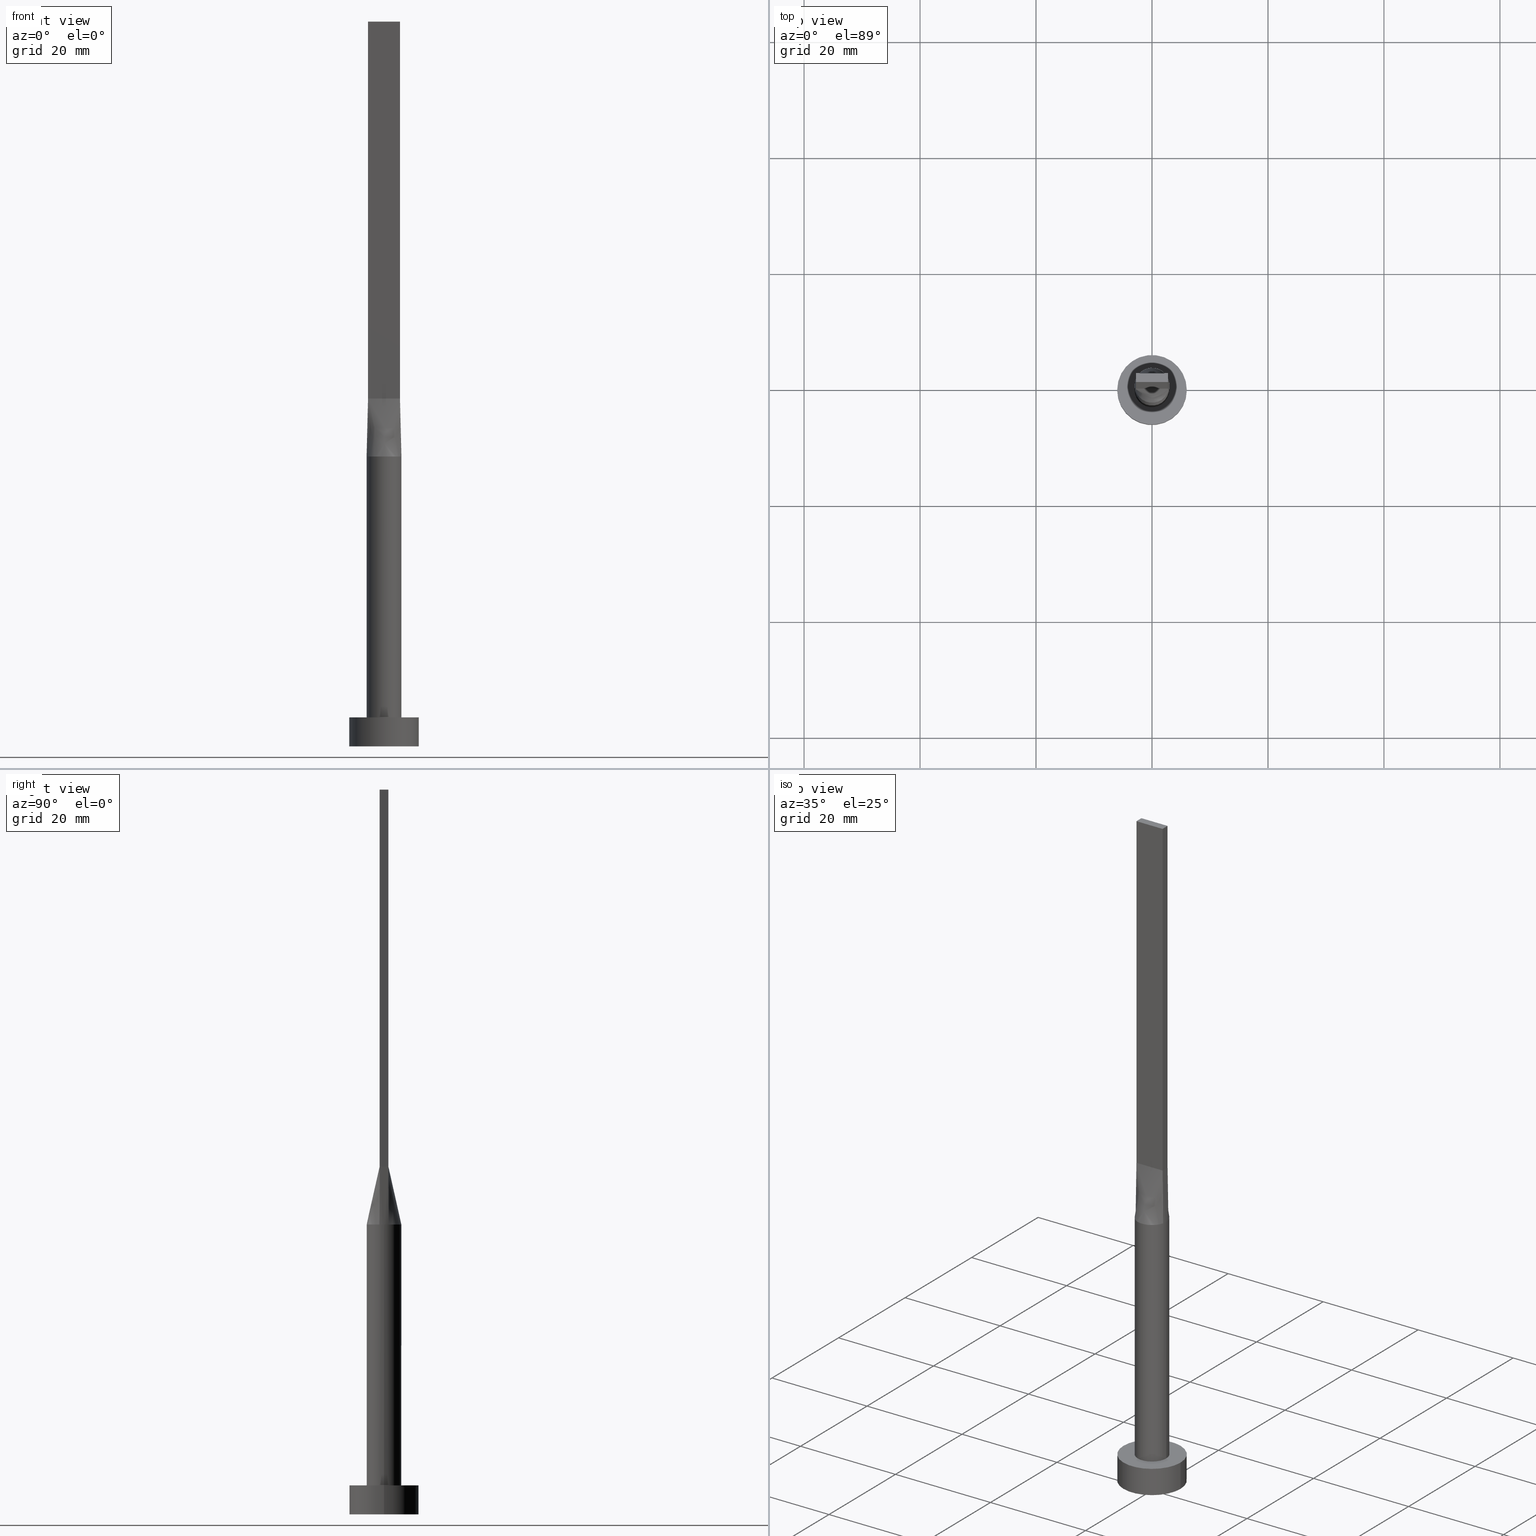
[diagram: canonical four-view strip — front | top / right | iso, engineering-drawing reading convention]
A machine part, canonical four-view strip (front | top / right | iso — engineering-drawing reading convention). The complete STEP part file that produces these views, byte-faithful:
ISO-10303-21;
HEADER;
FILE_DESCRIPTION (( 'STEP AP203' ),
    '1' );
FILE_NAME ('8f36.STEP',
    '2023-02-13T10:28:38',
    ( '' ),
    ( '' ),
    'SwSTEP 2.0',
    'SolidWorks 2019',
    '' );
FILE_SCHEMA (( 'CONFIG_CONTROL_DESIGN' ));
ENDSEC;

DATA;
#1 = CARTESIAN_POINT ( 'NONE',  ( 0.000000000000000000, 0.000000000000000000, 49.99999999999999289 ) ) ;
#2 = ORIENTED_EDGE ( 'NONE', *, *, #554, .T. ) ;
#3 = CARTESIAN_POINT ( 'NONE',  ( -0.7628506052746797383, 2.924692134573155133, 50.00000000000001421 ) ) ;
#4 = CARTESIAN_POINT ( 'NONE',  ( -1.604166666666666075, 0.7500000000000002220, 60.00000000000000000 ) ) ;
#5 = CARTESIAN_POINT ( 'NONE',  ( -2.894291463713197121, -0.7893522173763257710, 49.99999999999999289 ) ) ;
#6 = ORIENTED_EDGE ( 'NONE', *, *, #222, .F. ) ;
#7 = EDGE_LOOP ( 'NONE', ( #2, #357, #11, #54 ) ) ;
#8 = APPLICATION_CONTEXT ( 'configuration controlled 3d designs of mechanical parts and assemblies' ) ;
#9 = EDGE_CURVE ( 'NONE', #261, #267, #519, .T. ) ;
#10 = ADVANCED_FACE ( 'NONE', ( #527, #247 ), #285, .T. ) ;
#11 = ORIENTED_EDGE ( 'NONE', *, *, #30, .F. ) ;
#12 = CARTESIAN_POINT ( 'NONE',  ( 2.894514141151844910, -0.7894138151126537384, 49.99999999999999289 ) ) ;
#13 = DIRECTION ( 'NONE',  ( 1.000000000000000000, 0.000000000000000000, -0.000000000000000000 ) ) ;
#14 = CARTESIAN_POINT ( 'NONE',  ( 0.4583333333333297066, -0.7499999999999995559, 60.00000000000000000 ) ) ;
#15 = CARTESIAN_POINT ( 'NONE',  ( -3.000000000000000444, 0.000000000000000000, 5.000000000000000000 ) ) ;
#16 = FACE_OUTER_BOUND ( 'NONE', #79, .T. ) ;
#17 = CIRCLE ( 'NONE', #45, 3.000000000000000444 ) ;
#18 = CARTESIAN_POINT ( 'NONE',  ( -2.733316749964668002, 1.269511353635830453, 50.00000000000000711 ) ) ;
#19 = DIRECTION ( 'NONE',  ( 1.000000000000000000, -5.913830031739115543E-17, 0.000000000000000000 ) ) ;
#20 = CARTESIAN_POINT ( 'NONE',  ( -0.4583333333333369786, -0.7499999999999995559, 60.00000000000000000 ) ) ;
#21 = PERSON ( 'NEUR�EN�', 'NEUR�EN�', 'NEUR�EN�', ('NEUR�EN�'), ('NEUR�EN�'), ('NEUR�EN�') ) ;
#22 = CC_DESIGN_APPROVAL ( #290, ( #526 ) ) ;
#23 = CC_DESIGN_PERSON_AND_ORGANIZATION_ASSIGNMENT ( #349, #218, ( #526 ) ) ;
#24 = CARTESIAN_POINT ( 'NONE',  ( -2.750000000000000000, -0.7499999999999994449, 125.0000000000000000 ) ) ;
#25 = DIRECTION ( 'NONE',  ( 1.000000000000000000, 0.000000000000000000, 0.000000000000000000 ) ) ;
#26 = VECTOR ( 'NONE', #323, 1000.000000000000000 ) ;
#27 = CYLINDRICAL_SURFACE ( 'NONE', #103, 3.000000000000000444 ) ;
#28 = CYLINDRICAL_SURFACE ( 'NONE', #183, 6.000000000000000888 ) ;
#29 = EDGE_CURVE ( 'NONE', #150, #165, #544, .T. ) ;
#30 = EDGE_CURVE ( 'NONE', #245, #469, #148, .T. ) ;
#31 = FACE_OUTER_BOUND ( 'NONE', #140, .T. ) ;
#32 = APPROVAL_PERSON_ORGANIZATION ( #135, #290, #490 ) ;
#33 = PLANE ( 'NONE',  #173 ) ;
#34 = CARTESIAN_POINT ( 'NONE',  ( 2.750000000000000000, 0.5000000000000011102, 59.99999999999999289 ) ) ;
#35 = AXIS2_PLACEMENT_3D ( 'NONE', #80, #481, #565 ) ;
#36 = COORDINATED_UNIVERSAL_TIME_OFFSET ( 1, 0, .AHEAD. ) ;
#37 = EDGE_CURVE ( 'NONE', #360, #245, #156, .T. ) ;
#38 = LINE ( 'NONE', #219, #320 ) ;
#39 = LINE ( 'NONE', #42, #412 ) ;
#40 = CALENDAR_DATE ( 2023, 13, 2 ) ;
#41 = DIRECTION ( 'NONE',  ( 0.000000000000000000, 0.000000000000000000, 1.000000000000000000 ) ) ;
#42 = CARTESIAN_POINT ( 'NONE',  ( -2.750000000000000000, -0.7499999999999994449, 125.0000000000000000 ) ) ;
#43 = CARTESIAN_POINT ( 'NONE',  ( -2.894291463713197121, -0.7893522173763259930, 49.99999999999999289 ) ) ;
#44 = CARTESIAN_POINT ( 'NONE',  ( -1.447928580458858416, 2.653161878569119558, 50.00000000000000711 ) ) ;
#45 = AXIS2_PLACEMENT_3D ( 'NONE', #432, #160, #556 ) ;
#46 = CARTESIAN_POINT ( 'NONE',  ( 0.2291666666666677121, 0.7500000000000003331, 60.00000000000000000 ) ) ;
#47 = ORIENTED_EDGE ( 'NONE', *, *, #255, .F. ) ;
#48 = ADVANCED_FACE ( 'NONE', ( #16 ), #462, .F. ) ;
#49 = ORIENTED_EDGE ( 'NONE', *, *, #280, .F. ) ;
#50 = CARTESIAN_POINT ( 'NONE',  ( 1.833333333333333925, 0.7500000000000002220, 60.00000000000000000 ) ) ;
#51 = VERTEX_POINT ( 'NONE', #470 ) ;
#52 = ORGANIZATION ( 'NEUR�EN�', 'NEUR�EN�', '' ) ;
#53 = DIRECTION ( 'NONE',  ( -1.000000000000000000, 0.000000000000000000, 0.000000000000000000 ) ) ;
#54 = ORIENTED_EDGE ( 'NONE', *, *, #158, .T. ) ;
#55 = ORIENTED_EDGE ( 'NONE', *, *, #508, .F. ) ;
#56 = PRODUCT_DEFINITION_SHAPE ( 'NONE', 'NONE',  #509 ) ;
#57 = CARTESIAN_POINT ( 'NONE',  ( -2.442412046818594806, -1.765588549521968975, 49.99999999999999289 ) ) ;
#58 = EDGE_CURVE ( 'NONE', #469, #442, #152, .T. ) ;
#59 = EDGE_LOOP ( 'NONE', ( #49, #55 ) ) ;
#60 = ORIENTED_EDGE ( 'NONE', *, *, #29, .T. ) ;
#61 = DIRECTION ( 'NONE',  ( 0.000000000000000000, 0.000000000000000000, 1.000000000000000000 ) ) ;
#62 = VERTEX_POINT ( 'NONE', #12 ) ;
#63 = CARTESIAN_POINT ( 'NONE',  ( -2.291666666666667851, -0.7499999999999995559, 60.00000000000000000 ) ) ;
#65 = VECTOR ( 'NONE', #321, 1000.000000000000000 ) ;
#64 = DIRECTION ( 'NONE',  ( 1.000000000000000000, -5.913830031739115543E-17, 0.000000000000000000 ) ) ;
#66 = CARTESIAN_POINT ( 'NONE',  ( 2.750000000000000000, 0.7500000000000002220, 60.00000000000000000 ) ) ;
#67 = AXIS2_PLACEMENT_3D ( 'NONE', #1, #139, #98 ) ;
#68 = CARTESIAN_POINT ( 'NONE',  ( -2.830829925251659329, 1.022044525068634302, 50.00000000000000711 ) ) ;
#69 = ORIENTED_EDGE ( 'NONE', *, *, #37, .T. ) ;
#70 = ORIENTED_EDGE ( 'NONE', *, *, #201, .F. ) ;
#71 = PERSON_AND_ORGANIZATION ( #21, #52 ) ;
#72 = DIRECTION ( 'NONE',  ( 0.000000000000000000, -1.000000000000000000, 0.000000000000000000 ) ) ;
#73 = APPLICATION_CONTEXT ( 'configuration controlled 3d designs of mechanical parts and assemblies' ) ;
#74 = ORIENTED_EDGE ( 'NONE', *, *, #9, .F. ) ;
#75 = EDGE_CURVE ( 'NONE', #461, #469, #368, .T. ) ;
#76 = VECTOR ( 'NONE', #260, 1000.000000000000000 ) ;
#77 = CARTESIAN_POINT ( 'NONE',  ( 0.000000000000000000, 0.000000000000000000, 5.000000000000000000 ) ) ;
#78 = EDGE_CURVE ( 'NONE', #502, #189, #339, .T. ) ;
#79 = EDGE_LOOP ( 'NONE', ( #69, #234, #411, #205 ) ) ;
#80 = CARTESIAN_POINT ( 'NONE',  ( 0.000000000000000000, 0.000000000000000000, 5.000000000000000000 ) ) ;
#81 = CARTESIAN_POINT ( 'NONE',  ( 6.000000000000000888, 7.347880794884120722E-16, 0.000000000000000000 ) ) ;
#82 = APPROVAL ( #163, 'NEUR�EN�' ) ;
#83 = CALENDAR_DATE ( 2023, 13, 2 ) ;
#84 = DIRECTION ( 'NONE',  ( 0.000000000000000000, 0.000000000000000000, 1.000000000000000000 ) ) ;
#85 = CARTESIAN_POINT ( 'NONE',  ( -2.750000000000000000, 0.7500000000000002220, 125.0000000000000000 ) ) ;
#86 = PERSON_AND_ORGANIZATION ( #21, #52 ) ;
#87 = CARTESIAN_POINT ( 'NONE',  ( 0.9166666666666676289, 0.7500000000000003331, 60.00000000000000000 ) ) ;
#88 = CARTESIAN_POINT ( 'NONE',  ( 2.750000000000000000, 0.2500000000000014433, 59.99999999999999289 ) ) ;
#89 = CARTESIAN_POINT ( 'NONE',  ( -2.894291463713196677, 0.7893522173763264371, 49.99999999999999289 ) ) ;
#90 = CARTESIAN_POINT ( 'NONE',  ( 2.442412046818595250, 1.765588549521970529, 49.99999999999999289 ) ) ;
#91 = CARTESIAN_POINT ( 'NONE',  ( 2.750000000000000000, 0.7500000000000002220, 125.0000000000000000 ) ) ;
#92 = VECTOR ( 'NONE', #299, 1000.000000000000000 ) ;
#93 = ADVANCED_FACE ( 'NONE', ( #572 ), #326, .T. ) ;
#94 = CARTESIAN_POINT ( 'NONE',  ( 2.442412046818595250, 1.765588549521970529, 49.99999999999999289 ) ) ;
#95 = CARTESIAN_POINT ( 'NONE',  ( 2.248179627679386172, 2.014142483996539834, 49.99999999999998579 ) ) ;
#96 = ORIENTED_EDGE ( 'NONE', *, *, #508, .T. ) ;
#97 = ORIENTED_EDGE ( 'NONE', *, *, #75, .T. ) ;
#98 = DIRECTION ( 'NONE',  ( 1.000000000000000000, 0.000000000000000000, 0.000000000000000000 ) ) ;
#99 = ORIENTED_EDGE ( 'NONE', *, *, #492, .F. ) ;
#100 = ORIENTED_EDGE ( 'NONE', *, *, #554, .F. ) ;
#101 = EDGE_CURVE ( 'NONE', #165, #245, #39, .T. ) ;
#102 = CARTESIAN_POINT ( 'NONE',  ( 2.442412046818594362, -1.765588549521970751, 50.00000000000000000 ) ) ;
#103 = AXIS2_PLACEMENT_3D ( 'NONE', #338, #254, #517 ) ;
#104 = CARTESIAN_POINT ( 'NONE',  ( -0.9166666666666699603, -0.7499999999999995559, 60.00000000000000000 ) ) ;
#105 = CARTESIAN_POINT ( 'NONE',  ( -2.750000000000000000, -0.7499999999999994449, 60.00000000000000000 ) ) ;
#106 = DIRECTION ( 'NONE',  ( 0.000000000000000000, 0.000000000000000000, 1.000000000000000000 ) ) ;
#107 = CARTESIAN_POINT ( 'NONE',  ( -2.248179627679386616, -2.014142483996539390, 50.00000000000000711 ) ) ;
#108 = CARTESIAN_POINT ( 'NONE',  ( 2.750000000000000000, -0.7499999999999997780, 125.0000000000000000 ) ) ;
#109 = CARTESIAN_POINT ( 'NONE',  ( -2.750000000000000000, 0.7500000000000002220, 125.0000000000000000 ) ) ;
#110 = FACE_OUTER_BOUND ( 'NONE', #276, .T. ) ;
#111 = AXIS2_PLACEMENT_3D ( 'NONE', #441, #41, #221 ) ;
#112 = ORIENTED_EDGE ( 'NONE', *, *, #255, .T. ) ;
#113 = CARTESIAN_POINT ( 'NONE',  ( -2.894506632021299541, 0.7894116946786271516, 49.99999999999999289 ) ) ;
#114 = CARTESIAN_POINT ( 'NONE',  ( 2.750000000000000000, 0.7500000000000002220, 60.00000000000000000 ) ) ;
#115 = EDGE_CURVE ( 'NONE', #150, #360, #486, .T. ) ;
#116 = DIRECTION ( 'NONE',  ( -0.000000000000000000, -0.000000000000000000, -1.000000000000000000 ) ) ;
#117 = EDGE_CURVE ( 'NONE', #457, #373, #244, .T. ) ;
#118 = DIRECTION ( 'NONE',  ( 1.000000000000000000, 0.000000000000000000, 0.000000000000000000 ) ) ;
#119 = CARTESIAN_POINT ( 'NONE',  ( -2.963522232943965662, 0.5355060635301726046, 49.99999999999999289 ) ) ;
#120 = VECTOR ( 'NONE', #116, 1000.000000000000000 ) ;
#121 = DIRECTION ( 'NONE',  ( 0.000000000000000000, 0.000000000000000000, 1.000000000000000000 ) ) ;
#122 = ORIENTED_EDGE ( 'NONE', *, *, #30, .T. ) ;
#123 = DIRECTION ( 'NONE',  ( -1.000000000000000000, 0.000000000000000000, 0.000000000000000000 ) ) ;
#124 = ORIENTED_EDGE ( 'NONE', *, *, #201, .T. ) ;
#125 = COORDINATED_UNIVERSAL_TIME_OFFSET ( 1, 0, .AHEAD. ) ;
#126 = PRODUCT_DEFINITION_FORMATION_WITH_SPECIFIED_SOURCE ( 'LIBOVOLN�', '', #460, .NOT_KNOWN. ) ;
#127 = CARTESIAN_POINT ( 'NONE',  ( 2.822145731856598339, 0.7696761086881640512, 54.99999999999999289 ) ) ;
#128 = CARTESIAN_POINT ( 'NONE',  ( -3.000000000000000444, 0.000000000000000000, 49.99999999999999289 ) ) ;
#129 = CC_DESIGN_PERSON_AND_ORGANIZATION_ASSIGNMENT ( #397, #300, ( #126 ) ) ;
#130 = DIRECTION ( 'NONE',  ( 5.913830031739115543E-17, 1.000000000000000000, -0.000000000000000000 ) ) ;
#131 = VECTOR ( 'NONE', #463, 1000.000000000000000 ) ;
#132 = FACE_OUTER_BOUND ( 'NONE', #197, .T. ) ;
#133 = DATE_TIME_ROLE ( 'classification_date' ) ;
#134 = CARTESIAN_POINT ( 'NONE',  ( 2.520833333333333481, 0.7500000000000002220, 60.00000000000000000 ) ) ;
#135 = PERSON_AND_ORGANIZATION ( #21, #52 ) ;
#136 = EDGE_CURVE ( 'NONE', #62, #367, #17, .T. ) ;
#137 = CARTESIAN_POINT ( 'NONE',  ( -1.751288851749021491, 2.458468820606022565, 49.99999999999997868 ) ) ;
#138 = ORIENTED_EDGE ( 'NONE', *, *, #423, .T. ) ;
#139 = DIRECTION ( 'NONE',  ( 0.000000000000000000, 0.000000000000000000, 1.000000000000000000 ) ) ;
#140 = EDGE_LOOP ( 'NONE', ( #417, #273, #491, #97 ) ) ;
#141 = AXIS2_PLACEMENT_3D ( 'NONE', #418, #13, #369 ) ;
#142 = AXIS2_PLACEMENT_3D ( 'NONE', #501, #130, #187 ) ;
#143 = CARTESIAN_POINT ( 'NONE',  ( 0.000000000000000000, 0.000000000000000000, 5.000000000000000000 ) ) ;
#144 = ORIENTED_EDGE ( 'NONE', *, *, #117, .F. ) ;
#145 = EDGE_CURVE ( 'NONE', #426, #384, #203, .T. ) ;
#146 = CARTESIAN_POINT ( 'NONE',  ( 2.248179627679384840, -2.014142483996542055, 50.00000000000001421 ) ) ;
#147 = EDGE_LOOP ( 'NONE', ( #74, #372, #494, #454 ) ) ;
#148 = LINE ( 'NONE', #105, #564 ) ;
#149 = CARTESIAN_POINT ( 'NONE',  ( -2.520833333333333925, -0.7499999999999994449, 60.00000000000000000 ) ) ;
#150 = VERTEX_POINT ( 'NONE', #211 ) ;
#151 = VECTOR ( 'NONE', #209, 1000.000000000000000 ) ;
#152 = LINE ( 'NONE', #66, #193 ) ;
#153 = DIRECTION ( 'NONE',  ( 1.000000000000000000, 0.000000000000000000, 0.000000000000000000 ) ) ;
#154 = EDGE_LOOP ( 'NONE', ( #311, #60, #124, #344 ) ) ;
#155 = DIRECTION ( 'NONE',  ( -0.000000000000000000, 1.000000000000000000, -0.000000000000000000 ) ) ;
#156 = LINE ( 'NONE', #278, #65 ) ;
#157 = CARTESIAN_POINT ( 'NONE',  ( 2.291666666666665186, -0.7499999999999997780, 60.00000000000000000 ) ) ;
#158 = EDGE_CURVE ( 'NONE', #245, #458, #471, .T. ) ;
#159 = ORIENTED_EDGE ( 'NONE', *, *, #455, .T. ) ;
#160 = DIRECTION ( 'NONE',  ( 0.000000000000000000, 0.000000000000000000, 1.000000000000000000 ) ) ;
#161 = CARTESIAN_POINT ( 'NONE',  ( 2.830829925251657997, -1.022044525068636078, 50.00000000000000711 ) ) ;
#162 = DIRECTION ( 'NONE',  ( 1.000000000000000000, 0.000000000000000000, -0.000000000000000000 ) ) ;
#163 = APPROVAL_STATUS ( 'not_yet_approved' ) ;
#164 = DIRECTION ( 'NONE',  ( -0.000000000000000000, -0.000000000000000000, -1.000000000000000000 ) ) ;
#165 = VERTEX_POINT ( 'NONE', #24 ) ;
#166 = PERSON_AND_ORGANIZATION_ROLE ( 'creator' ) ;
#167 = CARTESIAN_POINT ( 'NONE',  ( 0.000000000000000000, 0.000000000000000000, 5.000000000000000000 ) ) ;
#168 = ADVANCED_BREP_SHAPE_REPRESENTATION ( '8f36', ( #452, #425 ), #284 ) ;
#169 = CARTESIAN_POINT ( 'NONE',  ( 6.000000000000000888, 7.347880794884120722E-16, 5.000000000000000000 ) ) ;
#170 = LOCAL_TIME ( 11, 28, 38.00000000000000000, #36 ) ;
#171 = LINE ( 'NONE', #390, #421 ) ;
#172 = VECTOR ( 'NONE', #288, 1000.000000000000000 ) ;
#173 = AXIS2_PLACEMENT_3D ( 'NONE', #213, #121, #301 ) ;
#174 = CARTESIAN_POINT ( 'NONE',  ( 0.000000000000000000, 0.000000000000000000, 5.000000000000000000 ) ) ;
#175 = CARTESIAN_POINT ( 'NONE',  ( 2.963522232943966106, -0.5355060635301738259, 49.99999999999999289 ) ) ;
#176 = CARTESIAN_POINT ( 'NONE',  ( 6.000000000000000888, 7.347880794884120722E-16, 5.000000000000000000 ) ) ;
#177 = DATE_AND_TIME ( #83, #246 ) ;
#178 = VECTOR ( 'NONE', #282, 1000.000000000000000 ) ;
#179 = DIRECTION ( 'NONE',  ( 0.000000000000000000, 0.000000000000000000, 1.000000000000000000 ) ) ;
#180 = CARTESIAN_POINT ( 'NONE',  ( 2.894291463713196677, -0.7893522173763282135, 49.99999999999999289 ) ) ;
#181 = APPROVAL_STATUS ( 'not_yet_approved' ) ;
#182 = DIRECTION ( 'NONE',  ( -1.000000000000000000, -0.000000000000000000, -0.000000000000000000 ) ) ;
#183 = AXIS2_PLACEMENT_3D ( 'NONE', #174, #385, #332 ) ;
#184 = SECURITY_CLASSIFICATION_LEVEL ( 'unclassified' ) ;
#185 = ADVANCED_FACE ( 'NONE', ( #382 ), #283, .T. ) ;
#186 = DIRECTION ( 'NONE',  ( 0.000000000000000000, 0.000000000000000000, 1.000000000000000000 ) ) ;
#187 = DIRECTION ( 'NONE',  ( -1.000000000000000000, 5.913830031739115543E-17, 0.000000000000000000 ) ) ;
#188 = CARTESIAN_POINT ( 'NONE',  ( 2.733316749964668446, 1.269511353635831341, 50.00000000000001421 ) ) ;
#189 = VERTEX_POINT ( 'NONE', #15 ) ;
#190 = LOCAL_TIME ( 11, 28, 38.00000000000000000, #125 ) ;
#191 = CARTESIAN_POINT ( 'NONE',  ( 1.751288851749022379, 2.458468820606022565, 49.99999999999998579 ) ) ;
#192 = CARTESIAN_POINT ( 'NONE',  ( -0.7628506052746797383, 2.924692134573155133, 50.00000000000001421 ) ) ;
#193 = VECTOR ( 'NONE', #155, 1000.000000000000000 ) ;
#194 = VECTOR ( 'NONE', #485, 1000.000000000000000 ) ;
#195 = CARTESIAN_POINT ( 'NONE',  ( -1.604166666666669183, -0.7499999999999995559, 60.00000000000000000 ) ) ;
#196 = CARTESIAN_POINT ( 'NONE',  ( -0.3818979204996094667, -3.000000000000000000, 50.00000000000000000 ) ) ;
#197 = EDGE_LOOP ( 'NONE', ( #363, #416, #100, #6, #229, #538 ) ) ;
#198 = CARTESIAN_POINT ( 'NONE',  ( 0.000000000000000000, 0.000000000000000000, 5.000000000000000000 ) ) ;
#199 = CARTESIAN_POINT ( 'NONE',  ( 2.520833333333332593, -0.7499999999999997780, 60.00000000000000000 ) ) ;
#200 = ORIENTED_EDGE ( 'NONE', *, *, #318, .T. ) ;
#201 = EDGE_CURVE ( 'NONE', #165, #461, #379, .T. ) ;
#202 = AXIS2_PLACEMENT_3D ( 'NONE', #523, #123, #482 ) ;
#203 = LINE ( 'NONE', #374, #120 ) ;
#204 = DIRECTION ( 'NONE',  ( -1.000000000000000000, 0.000000000000000000, 0.000000000000000000 ) ) ;
#205 = ORIENTED_EDGE ( 'NONE', *, *, #115, .T. ) ;
#206 = ADVANCED_FACE ( 'NONE', ( #240 ), #399, .T. ) ;
#207 = CIRCLE ( 'NONE', #308, 3.000000000000000444 ) ;
#208 = APPLICATION_PROTOCOL_DEFINITION ( 'international standard', 'config_control_design', 1994, #8 ) ;
#209 = DIRECTION ( 'NONE',  ( 0.01442753284129399960, -0.003934781683989194319, 0.9998881756422629552 ) ) ;
#210 = ORIENTED_EDGE ( 'NONE', *, *, #222, .T. ) ;
#211 = CARTESIAN_POINT ( 'NONE',  ( -2.750000000000000000, 0.7500000000000002220, 125.0000000000000000 ) ) ;
#212 = DIRECTION ( 'NONE',  ( 1.000000000000000000, 0.000000000000000000, 0.000000000000000000 ) ) ;
#213 = CARTESIAN_POINT ( 'NONE',  ( 0.000000000000000000, 0.000000000000000000, 0.000000000000000000 ) ) ;
#214 = AXIS2_PLACEMENT_3D ( 'NONE', #198, #555, #162 ) ;
#215 = DIRECTION ( 'NONE',  ( -0.01442753284129399960, 0.003934781683989411159, 0.9998881756422629552 ) ) ;
#216 = CARTESIAN_POINT ( 'NONE',  ( 2.750000000000000000, 0.7500000000000002220, 60.00000000000000000 ) ) ;
#217 = CARTESIAN_POINT ( 'NONE',  ( -2.963522232943966106, -0.5355060635301720495, 50.00000000000000000 ) ) ;
#218 = PERSON_AND_ORGANIZATION_ROLE ( 'classification_officer' ) ;
#219 = CARTESIAN_POINT ( 'NONE',  ( 2.750000000000000000, 0.7500000000000002220, 125.0000000000000000 ) ) ;
#220 = APPROVAL_STATUS ( 'not_yet_approved' ) ;
#221 = DIRECTION ( 'NONE',  ( 1.000000000000000000, 0.000000000000000000, 0.000000000000000000 ) ) ;
#222 = EDGE_CURVE ( 'NONE', #502, #458, #450, .T. ) ;
#223 = APPROVAL_ROLE ( '' ) ;
#224 = CARTESIAN_POINT ( 'NONE',  ( -0.3818979204996078569, 3.000000000000000888, 49.99999999999999289 ) ) ;
#225 = CARTESIAN_POINT ( 'NONE',  ( -2.291666666666666075, 0.7500000000000002220, 60.00000000000000000 ) ) ;
#226 = CIRCLE ( 'NONE', #430, 3.000000000000000444 ) ;
#227 = ORIENTED_EDGE ( 'NONE', *, *, #115, .F. ) ;
#228 = CARTESIAN_POINT ( 'NONE',  ( -2.733316749964668002, 1.269511353635830453, 50.00000000000000711 ) ) ;
#229 = ORIENTED_EDGE ( 'NONE', *, *, #78, .T. ) ;
#230 = CARTESIAN_POINT ( 'NONE',  ( 2.894482401701604424, 0.7894050286368272662, 49.99999999999999289 ) ) ;
#231 = DIRECTION ( 'NONE',  ( -0.000000000000000000, -0.000000000000000000, -1.000000000000000000 ) ) ;
#232 = ORIENTED_EDGE ( 'NONE', *, *, #318, .F. ) ;
#233 = ORIENTED_EDGE ( 'NONE', *, *, #563, .T. ) ;
#234 = ORIENTED_EDGE ( 'NONE', *, *, #101, .F. ) ;
#235 = CARTESIAN_POINT ( 'NONE',  ( 2.894291463713196677, -0.7893522173763275473, 49.99999999999999289 ) ) ;
#236 = ORIENTED_EDGE ( 'NONE', *, *, #352, .F. ) ;
#237 = ORIENTED_EDGE ( 'NONE', *, *, #75, .F. ) ;
#238 = CARTESIAN_POINT ( 'NONE',  ( -2.733316749964668446, -1.269511353635829787, 50.00000000000000711 ) ) ;
#239 = CARTESIAN_POINT ( 'NONE',  ( -1.833333333333335480, -0.7499999999999995559, 60.00000000000000000 ) ) ;
#240 = FACE_OUTER_BOUND ( 'NONE', #154, .T. ) ;
#241 = CIRCLE ( 'NONE', #35, 6.000000000000000888 ) ;
#242 = CARTESIAN_POINT ( 'NONE',  ( -2.750000000000000000, -0.7499999999999994449, 60.00000000000000000 ) ) ;
#243 = ADVANCED_FACE ( 'NONE', ( #132 ), #27, .T. ) ;
#244 = B_SPLINE_CURVE_WITH_KNOTS ( 'NONE', 3,
 ( #536, #542, #495, #94, #317, #191, #270, #506, #444, #224, #3, #539, #274, #380, #468, #18, #68, #113 ),
 .UNSPECIFIED., .F., .F.,
 ( 4, 2, 2, 2, 2, 2, 2, 2, 4 ),
 ( 0.000000000000000000, 0.1250000000000000000, 0.2500000000000000000, 0.3750000000000000000, 0.5000000000000000000, 0.6250000000000000000, 0.7500000000000000000, 0.8750000000000000000, 1.000000000000000000 ),
 .UNSPECIFIED. ) ;
#245 = VERTEX_POINT ( 'NONE', #252 ) ;
#246 = LOCAL_TIME ( 11, 28, 38.00000000000000000, #483 ) ;
#247 = FACE_OUTER_BOUND ( 'NONE', #497, .T. ) ;
#248 = DATE_AND_TIME ( #258, #292 ) ;
#249 = APPROVAL ( #181, 'NEUR�EN�' ) ;
#250 = DIRECTION ( 'NONE',  ( 0.000000000000000000, -0.000000000000000000, -1.000000000000000000 ) ) ;
#251 = CIRCLE ( 'NONE', #67, 3.000000000000000444 ) ;
#252 = CARTESIAN_POINT ( 'NONE',  ( -2.750000000000000000, -0.7499999999999994449, 60.00000000000000000 ) ) ;
#253 = ORIENTED_EDGE ( 'NONE', *, *, #117, .T. ) ;
#254 = DIRECTION ( 'NONE',  ( -0.000000000000000000, -0.000000000000000000, -1.000000000000000000 ) ) ;
#255 = EDGE_CURVE ( 'NONE', #373, #360, #329, .T. ) ;
#256 = CARTESIAN_POINT ( 'NONE',  ( 0.000000000000000000, 0.000000000000000000, 0.000000000000000000 ) ) ;
#257 = CARTESIAN_POINT ( 'NONE',  ( 3.000000000000000888, -0.2678361673275873600, 49.99999999999998579 ) ) ;
#258 = CALENDAR_DATE ( 2023, 13, 2 ) ;
#259 = DIRECTION ( 'NONE',  ( 1.000000000000000000, 0.000000000000000000, 0.000000000000000000 ) ) ;
#260 = DIRECTION ( 'NONE',  ( -0.000000000000000000, -0.000000000000000000, -1.000000000000000000 ) ) ;
#261 = VERTEX_POINT ( 'NONE', #176 ) ;
#262 = APPROVAL_DATE_TIME ( #304, #249 ) ;
#263 = CARTESIAN_POINT ( 'NONE',  ( -2.894291463713196677, 0.7893522173763257710, 49.99999999999999289 ) ) ;
#264 = CARTESIAN_POINT ( 'NONE',  ( 2.894291463713196677, 0.7893522173763277694, 49.99999999999999289 ) ) ;
#265 = CARTESIAN_POINT ( 'NONE',  ( 0.7628506052746800714, 2.924692134573154689, 50.00000000000000711 ) ) ;
#266 = ORIENTED_EDGE ( 'NONE', *, *, #515, .T. ) ;
#267 = VERTEX_POINT ( 'NONE', #81 ) ;
#268 = FACE_OUTER_BOUND ( 'NONE', #355, .T. ) ;
#269 = ORIENTED_EDGE ( 'NONE', *, *, #145, .F. ) ;
#270 = CARTESIAN_POINT ( 'NONE',  ( 1.447928580458859305, 2.653161878569118670, 50.00000000000000711 ) ) ;
#271 = CARTESIAN_POINT ( 'NONE',  ( 1.447928580458859305, 2.653161878569118670, 50.00000000000000711 ) ) ;
#272 = UNCERTAINTY_MEASURE_WITH_UNIT (LENGTH_MEASURE( 1.000000000000000082E-05 ), #513, 'distance_accuracy_value', 'NONE');
#273 = ORIENTED_EDGE ( 'NONE', *, *, #423, .F. ) ;
#274 = CARTESIAN_POINT ( 'NONE',  ( -1.751288851749021491, 2.458468820606022565, 49.99999999999997868 ) ) ;
#275 = CARTESIAN_POINT ( 'NONE',  ( 2.291666666666666963, 0.7500000000000002220, 60.00000000000000000 ) ) ;
#276 = EDGE_LOOP ( 'NONE', ( #546, #233, #449, #341, #476, #144 ) ) ;
#277 = CARTESIAN_POINT ( 'NONE',  ( -0.7628506052746809596, -2.924692134573154245, 49.99999999999998579 ) ) ;
#278 = CARTESIAN_POINT ( 'NONE',  ( -2.750000000000000000, 0.7500000000000002220, 60.00000000000000000 ) ) ;
#279 = CARTESIAN_POINT ( 'NONE',  ( 1.604166666666664076, -0.7499999999999997780, 60.00000000000000000 ) ) ;
#280 = EDGE_CURVE ( 'NONE', #384, #267, #347, .T. ) ;
#281 = ADVANCED_FACE ( 'NONE', ( #439 ), #434, .F. ) ;
#282 = DIRECTION ( 'NONE',  ( -0.000000000000000000, -0.000000000000000000, -1.000000000000000000 ) ) ;
#283 = B_SPLINE_SURFACE_WITH_KNOTS ( 'NONE', 3, 1, ( 
 ( #89, #295 ),
 ( #119, #438 ),
 ( #570, #387 ),
 ( #552, #521 ),
 ( #217, #484 ),
 ( #43, #353 ) ),
 .UNSPECIFIED., .F., .F., .F.,
 ( 4, 2, 4 ),
 ( 2, 2 ),
 ( 0.000000000000000000, 0.5000000000000000000, 1.000000000000000000 ),
 ( 0.000000000000000000, 1.000000000000000000 ),
 .UNSPECIFIED. ) ;
#284 =( GEOMETRIC_REPRESENTATION_CONTEXT ( 3 ) GLOBAL_UNCERTAINTY_ASSIGNED_CONTEXT ( ( #272 ) ) GLOBAL_UNIT_ASSIGNED_CONTEXT ( ( #513, #511, #415 ) ) REPRESENTATION_CONTEXT ( 'NONE', 'WORKASPACE' ) );
#285 = PLANE ( 'NONE',  #214 ) ;
#286 = CARTESIAN_POINT ( 'NONE',  ( 0.000000000000000000, 0.000000000000000000, 49.99999999999999289 ) ) ;
#287 = AXIS2_PLACEMENT_3D ( 'NONE', #408, #179, #529 ) ;
#288 = DIRECTION ( 'NONE',  ( 0.000000000000000000, -1.000000000000000000, 0.000000000000000000 ) ) ;
#289 = CARTESIAN_POINT ( 'NONE',  ( 0.9166666666666632990, -0.7499999999999995559, 60.00000000000000000 ) ) ;
#290 = APPROVAL ( #220, 'NEUR�EN�' ) ;
#291 = CARTESIAN_POINT ( 'NONE',  ( -2.822145731856598339, 0.7696761086881630520, 54.99999999999999289 ) ) ;
#292 = LOCAL_TIME ( 11, 28, 38.00000000000000000, #487 ) ;
#293 = CARTESIAN_POINT ( 'NONE',  ( 2.750000000000000000, 0.7500000000000002220, 125.0000000000000000 ) ) ;
#294 = EDGE_LOOP ( 'NONE', ( #388, #159, #510, #518, #236 ) ) ;
#295 = CARTESIAN_POINT ( 'NONE',  ( -2.750000000000000000, 0.7500000000000002220, 60.00000000000000000 ) ) ;
#296 = ADVANCED_FACE ( 'NONE', ( #431 ), #33, .F. ) ;
#297 = DIRECTION ( 'NONE',  ( 0.000000000000000000, 0.000000000000000000, 1.000000000000000000 ) ) ;
#298 = FACE_OUTER_BOUND ( 'NONE', #147, .T. ) ;
#299 = DIRECTION ( 'NONE',  ( -0.000000000000000000, -0.000000000000000000, -1.000000000000000000 ) ) ;
#300 = PERSON_AND_ORGANIZATION_ROLE ( 'design_supplier' ) ;
#301 = DIRECTION ( 'NONE',  ( 1.000000000000000000, 0.000000000000000000, -0.000000000000000000 ) ) ;
#302 = CARTESIAN_POINT ( 'NONE',  ( 2.750000000000000000, -0.2499999999999985290, 59.99999999999999289 ) ) ;
#303 = EDGE_CURVE ( 'NONE', #51, #189, #226, .T. ) ;
#304 = DATE_AND_TIME ( #378, #562 ) ;
#305 = CARTESIAN_POINT ( 'NONE',  ( 2.750000000000000000, -0.7499999999999997780, 125.0000000000000000 ) ) ;
#306 = CARTESIAN_POINT ( 'NONE',  ( 3.000000000000000444, 0.2678361673275868049, 49.99999999999998579 ) ) ;
#307 = CARTESIAN_POINT ( 'NONE',  ( 1.604166666666667629, 0.7500000000000002220, 60.00000000000000000 ) ) ;
#308 = AXIS2_PLACEMENT_3D ( 'NONE', #286, #61, #153 ) ;
#309 = CARTESIAN_POINT ( 'NONE',  ( 2.750000000000000000, -0.7499999999999997780, 60.00000000000000000 ) ) ;
#310 = VERTEX_POINT ( 'NONE', #393 ) ;
#311 = ORIENTED_EDGE ( 'NONE', *, *, #492, .T. ) ;
#312 = FACE_OUTER_BOUND ( 'NONE', #315, .T. ) ;
#313 = AXIS2_PLACEMENT_3D ( 'NONE', #77, #475, #118 ) ;
#314 = CARTESIAN_POINT ( 'NONE',  ( -0.9166666666666656305, 0.7500000000000002220, 60.00000000000000000 ) ) ;
#315 = EDGE_LOOP ( 'NONE', ( #232, #401, #96, #269 ) ) ;
#316 = CARTESIAN_POINT ( 'NONE',  ( -2.830829925251658885, -1.022044525068633858, 50.00000000000000711 ) ) ;
#317 = CARTESIAN_POINT ( 'NONE',  ( 2.248179627679386172, 2.014142483996539834, 49.99999999999998579 ) ) ;
#318 = EDGE_CURVE ( 'NONE', #261, #426, #241, .T. ) ;
#319 = CYLINDRICAL_SURFACE ( 'NONE', #578, 3.000000000000000444 ) ;
#320 = VECTOR ( 'NONE', #164, 1000.000000000000000 ) ;
#321 = DIRECTION ( 'NONE',  ( 0.000000000000000000, -1.000000000000000000, 0.000000000000000000 ) ) ;
#322 = CARTESIAN_POINT ( 'NONE',  ( 2.733316749964666670, -1.269511353635832229, 50.00000000000000711 ) ) ;
#323 = DIRECTION ( 'NONE',  ( -0.01442753284129404297, -0.003934781683989269779, -0.9998881756422629552 ) ) ;
#324 = LINE ( 'NONE', #108, #131 ) ;
#325 = VECTOR ( 'NONE', #568, 1000.000000000000000 ) ;
#326 = B_SPLINE_SURFACE_WITH_KNOTS ( 'NONE', 3, 1, ( 
 ( #180, #489 ),
 ( #175, #335 ),
 ( #257, #302 ),
 ( #306, #88 ),
 ( #435, #34 ),
 ( #264, #216 ) ),
 .UNSPECIFIED., .F., .F., .F.,
 ( 4, 2, 4 ),
 ( 2, 2 ),
 ( 0.000000000000000000, 0.5000000000000000000, 1.000000000000000000 ),
 ( 0.000000000000000000, 1.000000000000000000 ),
 .UNSPECIFIED. ) ;
#327 = CARTESIAN_POINT ( 'NONE',  ( -6.000000000000000888, 0.000000000000000000, 5.000000000000000000 ) ) ;
#328 = ORIENTED_EDGE ( 'NONE', *, *, #158, .F. ) ;
#329 = LINE ( 'NONE', #291, #151 ) ;
#330 = APPROVAL_PERSON_ORGANIZATION ( #86, #249, #223 ) ;
#331 = EDGE_CURVE ( 'NONE', #189, #51, #540, .T. ) ;
#332 = DIRECTION ( 'NONE',  ( -1.000000000000000000, 0.000000000000000000, 0.000000000000000000 ) ) ;
#333 = VECTOR ( 'NONE', #64, 1000.000000000000000 ) ;
#334 = PLANE ( 'NONE',  #202 ) ;
#335 = CARTESIAN_POINT ( 'NONE',  ( 2.750000000000000000, -0.4999999999999989453, 59.99999999999999289 ) ) ;
#336 = PERSON_AND_ORGANIZATION_ROLE ( 'creator' ) ;
#337 = CARTESIAN_POINT ( 'NONE',  ( 0.000000000000000000, 0.000000000000000000, 125.0000000000000000 ) ) ;
#338 = CARTESIAN_POINT ( 'NONE',  ( 0.000000000000000000, 0.000000000000000000, 49.99999999999999289 ) ) ;
#339 = LINE ( 'NONE', #128, #325 ) ;
#340 = ADVANCED_FACE ( 'NONE', ( #298 ), #28, .T. ) ;
#341 = ORIENTED_EDGE ( 'NONE', *, *, #78, .F. ) ;
#342 = DIRECTION ( 'NONE',  ( 0.000000000000000000, 0.000000000000000000, 1.000000000000000000 ) ) ;
#343 = PLANE ( 'NONE',  #142 ) ;
#344 = ORIENTED_EDGE ( 'NONE', *, *, #547, .T. ) ;
#345 = COORDINATED_UNIVERSAL_TIME_OFFSET ( 1, 0, .AHEAD. ) ;
#346 = CC_DESIGN_DATE_AND_TIME_ASSIGNMENT ( #440, #133, ( #526 ) ) ;
#347 = CIRCLE ( 'NONE', #479, 6.000000000000000888 ) ;
#348 = CARTESIAN_POINT ( 'NONE',  ( 1.145833333333334147, 0.7500000000000003331, 60.00000000000000000 ) ) ;
#349 = PERSON_AND_ORGANIZATION ( #21, #52 ) ;
#350 = CARTESIAN_POINT ( 'NONE',  ( 0.3818979204996085230, 3.000000000000001332, 50.00000000000000000 ) ) ;
#351 = ORIENTED_EDGE ( 'NONE', *, *, #530, .F. ) ;
#352 = EDGE_CURVE ( 'NONE', #62, #469, #171, .T. ) ;
#353 = CARTESIAN_POINT ( 'NONE',  ( -2.750000000000000000, -0.7499999999999993339, 60.00000000000000000 ) ) ;
#354 = CARTESIAN_POINT ( 'NONE',  ( -2.442412046818596139, 1.765588549521969641, 50.00000000000001421 ) ) ;
#355 = EDGE_LOOP ( 'NONE', ( #122, #237, #70, #409 ) ) ;
#356 = CC_DESIGN_PERSON_AND_ORGANIZATION_ASSIGNMENT ( #71, #336, ( #126 ) ) ;
#357 = ORIENTED_EDGE ( 'NONE', *, *, #352, .T. ) ;
#358 = CLOSED_SHELL ( 'NONE', ( #548, #467, #340, #10, #296, #243, #573, #93, #185, #428, #281, #48, #447, #386, #206 ) ) ;
#359 = CARTESIAN_POINT ( 'NONE',  ( -2.894489875237701959, -0.7894071376467488577, 49.99999999999999289 ) ) ;
#360 = VERTEX_POINT ( 'NONE', #395 ) ;
#361 = CIRCLE ( 'NONE', #111, 3.000000000000000444 ) ;
#362 = CARTESIAN_POINT ( 'NONE',  ( -1.751288851749022379, -2.458468820606022565, 49.99999999999999289 ) ) ;
#363 = ORIENTED_EDGE ( 'NONE', *, *, #563, .F. ) ;
#364 = EDGE_LOOP ( 'NONE', ( #500, #227, #99, #138 ) ) ;
#365 = FACE_OUTER_BOUND ( 'NONE', #7, .T. ) ;
#366 = ORIENTED_EDGE ( 'NONE', *, *, #407, .T. ) ;
#367 = VERTEX_POINT ( 'NONE', #561 ) ;
#368 = LINE ( 'NONE', #464, #512 ) ;
#369 = DIRECTION ( 'NONE',  ( -0.000000000000000000, 0.000000000000000000, -1.000000000000000000 ) ) ;
#370 = CARTESIAN_POINT ( 'NONE',  ( 0.2291666666666629937, -0.7499999999999995559, 60.00000000000000000 ) ) ;
#371 = ORIENTED_EDGE ( 'NONE', *, *, #303, .F. ) ;
#372 = ORIENTED_EDGE ( 'NONE', *, *, #407, .F. ) ;
#373 = VERTEX_POINT ( 'NONE', #520 ) ;
#374 = CARTESIAN_POINT ( 'NONE',  ( -6.000000000000000888, 0.000000000000000000, 5.000000000000000000 ) ) ;
#375 = CARTESIAN_POINT ( 'NONE',  ( 1.447928580458857972, -2.653161878569119558, 50.00000000000000711 ) ) ;
#376 = CC_DESIGN_SECURITY_CLASSIFICATION ( #526, ( #126 ) ) ;
#377 = DIRECTION ( 'NONE',  ( -0.000000000000000000, -0.000000000000000000, -1.000000000000000000 ) ) ;
#378 = CALENDAR_DATE ( 2023, 13, 2 ) ;
#379 = LINE ( 'NONE', #557, #333 ) ;
#380 = CARTESIAN_POINT ( 'NONE',  ( -2.248179627679385728, 2.014142483996540278, 49.99999999999998579 ) ) ;
#381 = CARTESIAN_POINT ( 'NONE',  ( 0.000000000000000000, 0.000000000000000000, 49.99999999999999289 ) ) ;
#382 = FACE_OUTER_BOUND ( 'NONE', #446, .T. ) ;
#383 = PERSON_AND_ORGANIZATION ( #21, #52 ) ;
#384 = VERTEX_POINT ( 'NONE', #433 ) ;
#385 = DIRECTION ( 'NONE',  ( -0.000000000000000000, -0.000000000000000000, -1.000000000000000000 ) ) ;
#386 = ADVANCED_FACE ( 'NONE', ( #31 ), #334, .F. ) ;
#387 = CARTESIAN_POINT ( 'NONE',  ( -2.750000000000000000, 0.2500000000000002220, 59.99999999999999289 ) ) ;
#388 = ORIENTED_EDGE ( 'NONE', *, *, #136, .T. ) ;
#389 = EDGE_CURVE ( 'NONE', #457, #442, #567, .T. ) ;
#390 = CARTESIAN_POINT ( 'NONE',  ( 2.822145731856598339, -0.7696761086881637182, 54.99999999999999289 ) ) ;
#391 = APPROVAL_PERSON_ORGANIZATION ( #436, #82, #576 ) ;
#392 = PRODUCT_RELATED_PRODUCT_CATEGORY ( 'detail', '', ( #460 ) ) ;
#393 = CARTESIAN_POINT ( 'NONE',  ( 2.750000000000000000, 0.7500000000000002220, 125.0000000000000000 ) ) ;
#394 = VECTOR ( 'NONE', #499, 1000.000000000000000 ) ;
#395 = CARTESIAN_POINT ( 'NONE',  ( -2.750000000000000000, 0.7500000000000002220, 60.00000000000000000 ) ) ;
#396 = DIRECTION ( 'NONE',  ( -0.000000000000000000, -0.000000000000000000, -1.000000000000000000 ) ) ;
#397 = PERSON_AND_ORGANIZATION ( #21, #52 ) ;
#398 = CYLINDRICAL_SURFACE ( 'NONE', #522, 6.000000000000000888 ) ;
#399 = PLANE ( 'NONE',  #437 ) ;
#400 = APPROVAL_DATE_TIME ( #177, #290 ) ;
#401 = ORIENTED_EDGE ( 'NONE', *, *, #9, .T. ) ;
#402 = LINE ( 'NONE', #575, #514 ) ;
#403 = MECHANICAL_CONTEXT ( 'NONE', #8, 'mechanical' ) ;
#404 = DESIGN_CONTEXT ( 'detailed design', #73, 'design' ) ;
#405 = AXIS2_PLACEMENT_3D ( 'NONE', #381, #106, #424 ) ;
#406 = CARTESIAN_POINT ( 'NONE',  ( 0.4583333333333343695, 0.7500000000000003331, 60.00000000000000000 ) ) ;
#407 = EDGE_CURVE ( 'NONE', #426, #261, #498, .T. ) ;
#408 = CARTESIAN_POINT ( 'NONE',  ( 0.000000000000000000, 0.000000000000000000, 0.000000000000000000 ) ) ;
#409 = ORIENTED_EDGE ( 'NONE', *, *, #101, .T. ) ;
#410 = CARTESIAN_POINT ( 'NONE',  ( -2.520833333333333037, 0.7500000000000002220, 60.00000000000000000 ) ) ;
#411 = ORIENTED_EDGE ( 'NONE', *, *, #29, .F. ) ;
#412 = VECTOR ( 'NONE', #396, 1000.000000000000000 ) ;
#413 = LINE ( 'NONE', #419, #178 ) ;
#414 = EDGE_LOOP ( 'NONE', ( #253, #112, #351, #505 ) ) ;
#415 =( NAMED_UNIT ( * ) SI_UNIT ( $, .STERADIAN. ) SOLID_ANGLE_UNIT ( ) );
#416 = ORIENTED_EDGE ( 'NONE', *, *, #136, .F. ) ;
#417 = ORIENTED_EDGE ( 'NONE', *, *, #58, .T. ) ;
#418 = CARTESIAN_POINT ( 'NONE',  ( -2.750000000000000000, 0.7500000000000002220, 125.0000000000000000 ) ) ;
#419 = CARTESIAN_POINT ( 'NONE',  ( 3.000000000000000444, 3.673940397442059868E-16, 49.99999999999999289 ) ) ;
#420 = CARTESIAN_POINT ( 'NONE',  ( -1.447928580458859749, -2.653161878569118226, 50.00000000000000000 ) ) ;
#421 = VECTOR ( 'NONE', #215, 1000.000000000000000 ) ;
#422 = B_SPLINE_SURFACE_WITH_KNOTS ( 'NONE', 3, 1, ( 
 ( #516, #114 ),
 ( #429, #134 ),
 ( #188, #275 ),
 ( #90, #50 ),
 ( #95, #307 ),
 ( #488, #348 ),
 ( #271, #87 ),
 ( #265, #406 ),
 ( #350, #46 ),
 ( #445, #535 ),
 ( #192, #453 ),
 ( #44, #314 ),
 ( #137, #579 ),
 ( #541, #4 ),
 ( #354, #537 ),
 ( #228, #225 ),
 ( #571, #410 ),
 ( #263, #493 ) ),
 .UNSPECIFIED., .F., .F., .F.,
 ( 4, 2, 2, 2, 2, 2, 2, 2, 4 ),
 ( 2, 2 ),
 ( 0.000000000000000000, 0.1250000000000000000, 0.2500000000000000000, 0.3750000000000000000, 0.5000000000000000000, 0.6250000000000000000, 0.7500000000000000000, 0.8750000000000000000, 1.000000000000000000 ),
 ( 0.000000000000000000, 1.000000000000000000 ),
 .UNSPECIFIED. ) ;
#423 = EDGE_CURVE ( 'NONE', #310, #442, #38, .T. ) ;
#424 = DIRECTION ( 'NONE',  ( 1.000000000000000000, 0.000000000000000000, 0.000000000000000000 ) ) ;
#425 = AXIS2_PLACEMENT_3D ( 'NONE', #443, #342, #25 ) ;
#426 = VERTEX_POINT ( 'NONE', #327 ) ;
#427 = CARTESIAN_POINT ( 'NONE',  ( -2.822145731856598783, -0.7696761086881626079, 54.99999999999999289 ) ) ;
#428 = ADVANCED_FACE ( 'NONE', ( #560 ), #422, .T. ) ;
#429 = CARTESIAN_POINT ( 'NONE',  ( 2.830829925251657997, 1.022044525068634302, 50.00000000000000711 ) ) ;
#430 = AXIS2_PLACEMENT_3D ( 'NONE', #478, #558, #525 ) ;
#431 = FACE_OUTER_BOUND ( 'NONE', #59, .T. ) ;
#432 = CARTESIAN_POINT ( 'NONE',  ( 0.000000000000000000, 0.000000000000000000, 49.99999999999999289 ) ) ;
#433 = CARTESIAN_POINT ( 'NONE',  ( -6.000000000000000888, 0.000000000000000000, 0.000000000000000000 ) ) ;
#434 = PLANE ( 'NONE',  #532 ) ;
#435 = CARTESIAN_POINT ( 'NONE',  ( 2.963522232943965662, 0.5355060635301733818, 50.00000000000000000 ) ) ;
#436 = PERSON_AND_ORGANIZATION ( #21, #52 ) ;
#437 = AXIS2_PLACEMENT_3D ( 'NONE', #337, #186, #459 ) ;
#438 = CARTESIAN_POINT ( 'NONE',  ( -2.750000000000000000, 0.5000000000000002220, 59.99999999999999289 ) ) ;
#439 = FACE_OUTER_BOUND ( 'NONE', #364, .T. ) ;
#440 = DATE_AND_TIME ( #40, #190 ) ;
#441 = CARTESIAN_POINT ( 'NONE',  ( 0.000000000000000000, 0.000000000000000000, 49.99999999999999289 ) ) ;
#442 = VERTEX_POINT ( 'NONE', #533 ) ;
#443 = CARTESIAN_POINT ( 'NONE',  ( 0.000000000000000000, 0.000000000000000000, 0.000000000000000000 ) ) ;
#444 = CARTESIAN_POINT ( 'NONE',  ( 0.3818979204996085230, 3.000000000000001332, 50.00000000000000000 ) ) ;
#445 = CARTESIAN_POINT ( 'NONE',  ( -0.3818979204996078569, 3.000000000000000888, 49.99999999999999289 ) ) ;
#446 = EDGE_LOOP ( 'NONE', ( #266, #210, #328, #580, #47 ) ) ;
#447 = ADVANCED_FACE ( 'NONE', ( #268 ), #343, .F. ) ;
#448 = CC_DESIGN_PERSON_AND_ORGANIZATION_ASSIGNMENT ( #383, #531, ( #460 ) ) ;
#449 = ORIENTED_EDGE ( 'NONE', *, *, #303, .T. ) ;
#450 = CIRCLE ( 'NONE', #405, 3.000000000000000444 ) ;
#451 = CARTESIAN_POINT ( 'NONE',  ( -3.000000000000000000, -1.912111867153114916E-16, 49.99999999999998579 ) ) ;
#452 = MANIFOLD_SOLID_BREP ( 'P�idat vysunut�m5', #358 ) ;
#453 = CARTESIAN_POINT ( 'NONE',  ( -0.4583333333333323711, 0.7500000000000003331, 60.00000000000000000 ) ) ;
#454 = ORIENTED_EDGE ( 'NONE', *, *, #280, .T. ) ;
#455 = EDGE_CURVE ( 'NONE', #367, #457, #251, .T. ) ;
#456 = DIRECTION ( 'NONE',  ( -0.000000000000000000, -0.000000000000000000, -1.000000000000000000 ) ) ;
#457 = VERTEX_POINT ( 'NONE', #230 ) ;
#458 = VERTEX_POINT ( 'NONE', #359 ) ;
#459 = DIRECTION ( 'NONE',  ( 1.000000000000000000, 0.000000000000000000, -0.000000000000000000 ) ) ;
#460 = PRODUCT ( '8f36', '8f36', '', ( #403 ) ) ;
#461 = VERTEX_POINT ( 'NONE', #305 ) ;
#462 = PLANE ( 'NONE',  #141 ) ;
#463 = DIRECTION ( 'NONE',  ( 0.000000000000000000, 1.000000000000000000, 0.000000000000000000 ) ) ;
#464 = CARTESIAN_POINT ( 'NONE',  ( 2.750000000000000000, -0.7499999999999997780, 125.0000000000000000 ) ) ;
#465 = CARTESIAN_POINT ( 'NONE',  ( -1.145833333333336368, -0.7499999999999995559, 60.00000000000000000 ) ) ;
#466 = CC_DESIGN_APPROVAL ( #82, ( #509 ) ) ;
#467 = ADVANCED_FACE ( 'NONE', ( #312 ), #398, .T. ) ;
#468 = CARTESIAN_POINT ( 'NONE',  ( -2.442412046818596139, 1.765588549521969641, 50.00000000000001421 ) ) ;
#469 = VERTEX_POINT ( 'NONE', #309 ) ;
#470 = CARTESIAN_POINT ( 'NONE',  ( 3.000000000000000444, 3.673940397442059868E-16, 5.000000000000000000 ) ) ;
#471 = LINE ( 'NONE', #427, #26 ) ;
#472 = CARTESIAN_POINT ( 'NONE',  ( 1.751288851749020603, -2.458468820606023897, 50.00000000000000711 ) ) ;
#473 = CIRCLE ( 'NONE', #287, 6.000000000000000888 ) ;
#474 = DATE_AND_TIME ( #569, #170 ) ;
#475 = DIRECTION ( 'NONE',  ( 0.000000000000000000, 0.000000000000000000, 1.000000000000000000 ) ) ;
#476 = ORIENTED_EDGE ( 'NONE', *, *, #515, .F. ) ;
#477 = CC_DESIGN_DATE_AND_TIME_ASSIGNMENT ( #248, #534, ( #509 ) ) ;
#478 = CARTESIAN_POINT ( 'NONE',  ( 0.000000000000000000, 0.000000000000000000, 5.000000000000000000 ) ) ;
#479 = AXIS2_PLACEMENT_3D ( 'NONE', #256, #297, #212 ) ;
#480 = ORIENTED_EDGE ( 'NONE', *, *, #331, .F. ) ;
#481 = DIRECTION ( 'NONE',  ( 0.000000000000000000, 0.000000000000000000, 1.000000000000000000 ) ) ;
#482 = DIRECTION ( 'NONE',  ( 0.000000000000000000, 0.000000000000000000, 1.000000000000000000 ) ) ;
#483 = COORDINATED_UNIVERSAL_TIME_OFFSET ( 1, 0, .AHEAD. ) ;
#484 = CARTESIAN_POINT ( 'NONE',  ( -2.750000000000000000, -0.4999999999999994449, 59.99999999999999289 ) ) ;
#485 = DIRECTION ( 'NONE',  ( -0.01442753284129399960, -0.003934781683989389475, 0.9998881756422629552 ) ) ;
#486 = LINE ( 'NONE', #85, #76 ) ;
#487 = COORDINATED_UNIVERSAL_TIME_OFFSET ( 1, 0, .AHEAD. ) ;
#488 = CARTESIAN_POINT ( 'NONE',  ( 1.751288851749022379, 2.458468820606022565, 49.99999999999998579 ) ) ;
#489 = CARTESIAN_POINT ( 'NONE',  ( 2.750000000000000000, -0.7499999999999997780, 60.00000000000000000 ) ) ;
#490 = APPROVAL_ROLE ( '' ) ;
#491 = ORIENTED_EDGE ( 'NONE', *, *, #547, .F. ) ;
#492 = EDGE_CURVE ( 'NONE', #310, #150, #496, .T. ) ;
#493 = CARTESIAN_POINT ( 'NONE',  ( -2.750000000000000000, 0.7500000000000002220, 60.00000000000000000 ) ) ;
#494 = ORIENTED_EDGE ( 'NONE', *, *, #145, .T. ) ;
#495 = CARTESIAN_POINT ( 'NONE',  ( 2.733316749964668446, 1.269511353635831341, 50.00000000000001421 ) ) ;
#496 = LINE ( 'NONE', #91, #394 ) ;
#497 = EDGE_LOOP ( 'NONE', ( #366, #200 ) ) ;
#498 = CIRCLE ( 'NONE', #566, 6.000000000000000888 ) ;
#499 = DIRECTION ( 'NONE',  ( -1.000000000000000000, 0.000000000000000000, 0.000000000000000000 ) ) ;
#500 = ORIENTED_EDGE ( 'NONE', *, *, #530, .T. ) ;
#501 = CARTESIAN_POINT ( 'NONE',  ( -2.750000000000000000, -0.7499999999999994449, 125.0000000000000000 ) ) ;
#502 = VERTEX_POINT ( 'NONE', #451 ) ;
#503 = CC_DESIGN_APPROVAL ( #249, ( #126 ) ) ;
#504 = CARTESIAN_POINT ( 'NONE',  ( 0.7628506052746785171, -2.924692134573155577, 50.00000000000000000 ) ) ;
#505 = ORIENTED_EDGE ( 'NONE', *, *, #389, .F. ) ;
#506 = CARTESIAN_POINT ( 'NONE',  ( 0.7628506052746800714, 2.924692134573154689, 50.00000000000000711 ) ) ;
#507 = CARTESIAN_POINT ( 'NONE',  ( -0.2291666666666703489, -0.7499999999999995559, 60.00000000000000000 ) ) ;
#508 = EDGE_CURVE ( 'NONE', #267, #384, #473, .T. ) ;
#509 = PRODUCT_DEFINITION ( 'NEZN�M�', '', #126, #404 ) ;
#510 = ORIENTED_EDGE ( 'NONE', *, *, #389, .T. ) ;
#511 =( NAMED_UNIT ( * ) PLANE_ANGLE_UNIT ( ) SI_UNIT ( $, .RADIAN. ) );
#512 = VECTOR ( 'NONE', #377, 1000.000000000000000 ) ;
#513 =( LENGTH_UNIT ( ) NAMED_UNIT ( * ) SI_UNIT ( .MILLI., .METRE. ) );
#514 = VECTOR ( 'NONE', #182, 1000.000000000000000 ) ;
#515 = EDGE_CURVE ( 'NONE', #373, #502, #361, .T. ) ;
#516 = CARTESIAN_POINT ( 'NONE',  ( 2.894291463713197121, 0.7893522173763263261, 49.99999999999999289 ) ) ;
#517 = DIRECTION ( 'NONE',  ( -1.000000000000000000, 0.000000000000000000, 0.000000000000000000 ) ) ;
#518 = ORIENTED_EDGE ( 'NONE', *, *, #58, .F. ) ;
#519 = LINE ( 'NONE', #169, #92 ) ;
#520 = CARTESIAN_POINT ( 'NONE',  ( -2.894506632021299541, 0.7894116946786271516, 49.99999999999999289 ) ) ;
#521 = CARTESIAN_POINT ( 'NONE',  ( -2.750000000000000000, -0.2499999999999995837, 59.99999999999999289 ) ) ;
#522 = AXIS2_PLACEMENT_3D ( 'NONE', #143, #456, #53 ) ;
#523 = CARTESIAN_POINT ( 'NONE',  ( 2.750000000000000000, -0.7499999999999997780, 125.0000000000000000 ) ) ;
#524 = PERSON_AND_ORGANIZATION ( #21, #52 ) ;
#525 = DIRECTION ( 'NONE',  ( 1.000000000000000000, 0.000000000000000000, 0.000000000000000000 ) ) ;
#526 = SECURITY_CLASSIFICATION ( '', '', #184 ) ;
#527 = FACE_BOUND ( 'NONE', #581, .T. ) ;
#528 = SHAPE_DEFINITION_REPRESENTATION ( #56, #168 ) ;
#529 = DIRECTION ( 'NONE',  ( 1.000000000000000000, 0.000000000000000000, 0.000000000000000000 ) ) ;
#530 = EDGE_CURVE ( 'NONE', #442, #360, #402, .T. ) ;
#531 = PERSON_AND_ORGANIZATION_ROLE ( 'design_owner' ) ;
#532 = AXIS2_PLACEMENT_3D ( 'NONE', #293, #72, #250 ) ;
#533 = CARTESIAN_POINT ( 'NONE',  ( 2.750000000000000000, 0.7500000000000002220, 60.00000000000000000 ) ) ;
#534 = DATE_TIME_ROLE ( 'creation_date' ) ;
#535 = CARTESIAN_POINT ( 'NONE',  ( -0.2291666666666656582, 0.7500000000000003331, 60.00000000000000000 ) ) ;
#536 = CARTESIAN_POINT ( 'NONE',  ( 2.894482401701604424, 0.7894050286368272662, 49.99999999999999289 ) ) ;
#537 = CARTESIAN_POINT ( 'NONE',  ( -1.833333333333332593, 0.7500000000000002220, 60.00000000000000000 ) ) ;
#538 = ORIENTED_EDGE ( 'NONE', *, *, #331, .T. ) ;
#539 = CARTESIAN_POINT ( 'NONE',  ( -1.447928580458858416, 2.653161878569119558, 50.00000000000000711 ) ) ;
#540 = CIRCLE ( 'NONE', #313, 3.000000000000000444 ) ;
#541 = CARTESIAN_POINT ( 'NONE',  ( -2.248179627679385728, 2.014142483996540278, 49.99999999999998579 ) ) ;
#542 = CARTESIAN_POINT ( 'NONE',  ( 2.830829925251657997, 1.022044525068634302, 50.00000000000000711 ) ) ;
#543 = CARTESIAN_POINT ( 'NONE',  ( 1.145833333333330373, -0.7499999999999996669, 60.00000000000000000 ) ) ;
#544 = LINE ( 'NONE', #109, #172 ) ;
#545 = CARTESIAN_POINT ( 'NONE',  ( 0.000000000000000000, 0.000000000000000000, 49.99999999999999289 ) ) ;
#546 = ORIENTED_EDGE ( 'NONE', *, *, #455, .F. ) ;
#547 = EDGE_CURVE ( 'NONE', #461, #310, #324, .T. ) ;
#548 = ADVANCED_FACE ( 'NONE', ( #110 ), #319, .T. ) ;
#549 = CARTESIAN_POINT ( 'NONE',  ( 2.750000000000000000, -0.7499999999999997780, 60.00000000000000000 ) ) ;
#550 = B_SPLINE_SURFACE_WITH_KNOTS ( 'NONE', 3, 1, ( 
 ( #5, #242 ),
 ( #316, #149 ),
 ( #238, #63 ),
 ( #57, #239 ),
 ( #107, #195 ),
 ( #362, #465 ),
 ( #420, #104 ),
 ( #277, #20 ),
 ( #196, #507 ),
 ( #551, #370 ),
 ( #504, #14 ),
 ( #375, #289 ),
 ( #472, #543 ),
 ( #146, #279 ),
 ( #102, #553 ),
 ( #322, #157 ),
 ( #161, #199 ),
 ( #235, #549 ) ),
 .UNSPECIFIED., .F., .F., .F.,
 ( 4, 2, 2, 2, 2, 2, 2, 2, 4 ),
 ( 2, 2 ),
 ( 0.000000000000000000, 0.1250000000000000000, 0.2500000000000000000, 0.3750000000000000000, 0.5000000000000000000, 0.6250000000000000000, 0.7500000000000000000, 0.8750000000000000000, 1.000000000000000000 ),
 ( 0.000000000000000000, 1.000000000000000000 ),
 .UNSPECIFIED. ) ;
#551 = CARTESIAN_POINT ( 'NONE',  ( 0.3818979204996068022, -3.000000000000001332, 49.99999999999998579 ) ) ;
#552 = CARTESIAN_POINT ( 'NONE',  ( -2.999999999999999112, -0.2678361673275861388, 49.99999999999998579 ) ) ;
#553 = CARTESIAN_POINT ( 'NONE',  ( 1.833333333333331261, -0.7499999999999997780, 60.00000000000000000 ) ) ;
#554 = EDGE_CURVE ( 'NONE', #458, #62, #207, .T. ) ;
#555 = DIRECTION ( 'NONE',  ( 0.000000000000000000, 0.000000000000000000, 1.000000000000000000 ) ) ;
#556 = DIRECTION ( 'NONE',  ( 1.000000000000000000, -3.552713678800500929E-15, 0.000000000000000000 ) ) ;
#557 = CARTESIAN_POINT ( 'NONE',  ( -2.750000000000000000, -0.7499999999999994449, 125.0000000000000000 ) ) ;
#558 = DIRECTION ( 'NONE',  ( 0.000000000000000000, 0.000000000000000000, 1.000000000000000000 ) ) ;
#559 = APPLICATION_PROTOCOL_DEFINITION ( 'international standard', 'config_control_design', 1994, #73 ) ;
#560 = FACE_OUTER_BOUND ( 'NONE', #414, .T. ) ;
#561 = CARTESIAN_POINT ( 'NONE',  ( 3.000000000000000888, 4.817174831141492683E-17, 49.99999999999998579 ) ) ;
#562 = LOCAL_TIME ( 11, 28, 38.00000000000000000, #345 ) ;
#563 = EDGE_CURVE ( 'NONE', #367, #51, #413, .T. ) ;
#564 = VECTOR ( 'NONE', #19, 1000.000000000000000 ) ;
#565 = DIRECTION ( 'NONE',  ( 1.000000000000000000, 0.000000000000000000, 0.000000000000000000 ) ) ;
#566 = AXIS2_PLACEMENT_3D ( 'NONE', #167, #84, #259 ) ;
#567 = LINE ( 'NONE', #127, #194 ) ;
#568 = DIRECTION ( 'NONE',  ( -0.000000000000000000, -0.000000000000000000, -1.000000000000000000 ) ) ;
#569 = CALENDAR_DATE ( 2023, 13, 2 ) ;
#570 = CARTESIAN_POINT ( 'NONE',  ( -3.000000000000000000, 0.2678361673275868049, 49.99999999999998579 ) ) ;
#571 = CARTESIAN_POINT ( 'NONE',  ( -2.830829925251659329, 1.022044525068634302, 50.00000000000000711 ) ) ;
#572 = FACE_OUTER_BOUND ( 'NONE', #294, .T. ) ;
#573 = ADVANCED_FACE ( 'NONE', ( #365 ), #550, .T. ) ;
#574 = APPROVAL_DATE_TIME ( #474, #82 ) ;
#575 = CARTESIAN_POINT ( 'NONE',  ( -2.750000000000000000, 0.7500000000000002220, 60.00000000000000000 ) ) ;
#576 = APPROVAL_ROLE ( '' ) ;
#577 = CC_DESIGN_PERSON_AND_ORGANIZATION_ASSIGNMENT ( #524, #166, ( #509 ) ) ;
#578 = AXIS2_PLACEMENT_3D ( 'NONE', #545, #231, #204 ) ;
#579 = CARTESIAN_POINT ( 'NONE',  ( -1.145833333333332371, 0.7500000000000002220, 60.00000000000000000 ) ) ;
#580 = ORIENTED_EDGE ( 'NONE', *, *, #37, .F. ) ;
#581 = EDGE_LOOP ( 'NONE', ( #480, #371 ) ) ;
ENDSEC;
END-ISO-10303-21;
